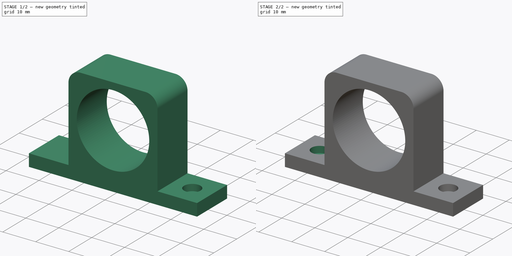
[diagram: build sequence overview — one tinted view per stage of 2, left to right]
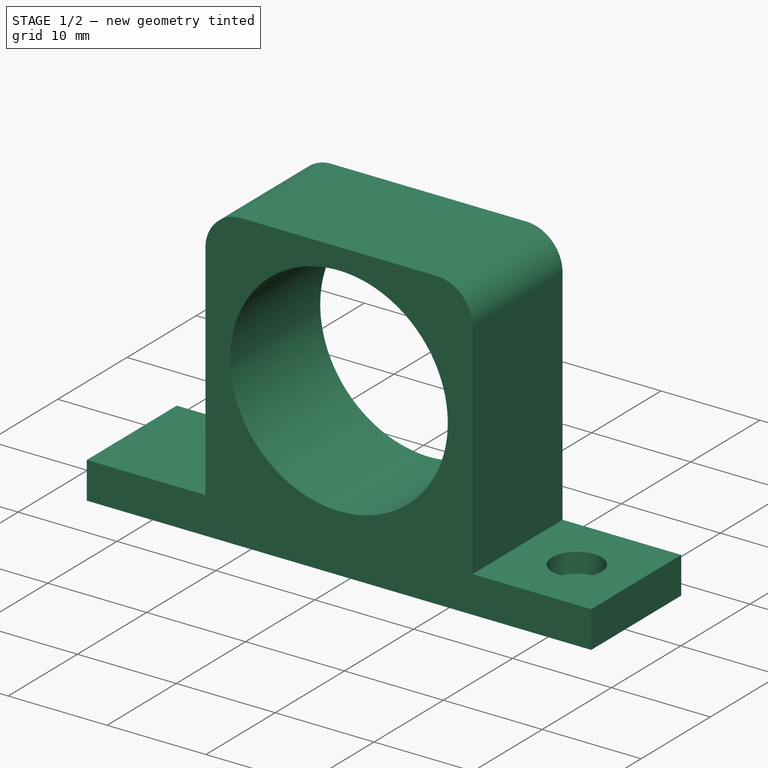
[diagram: stage 1 of 2 — iso view after this stage's code; geometry added in this stage tinted green]
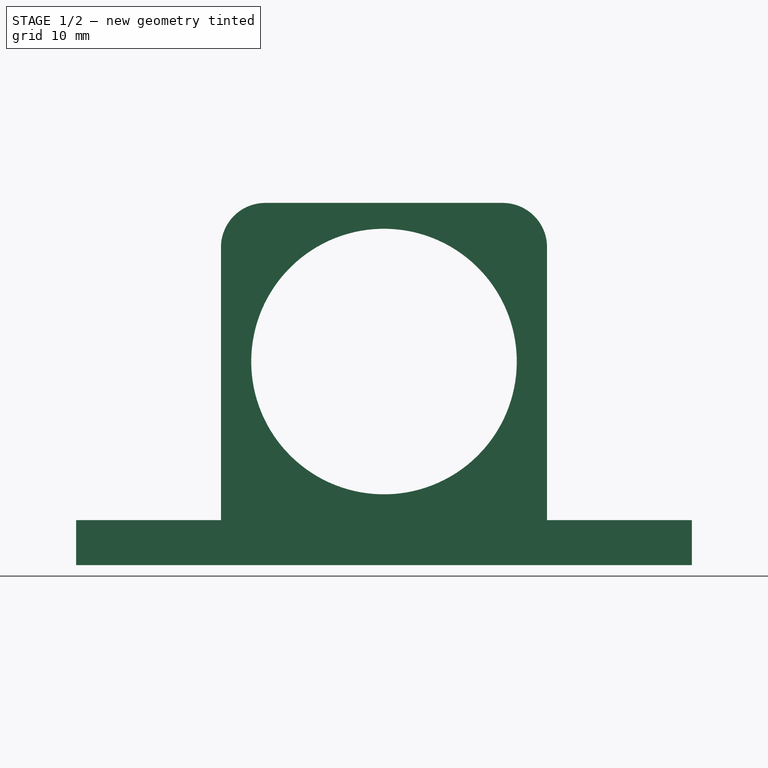
[diagram: stage 1 of 2 — front view after this stage's code; geometry added in this stage tinted green]
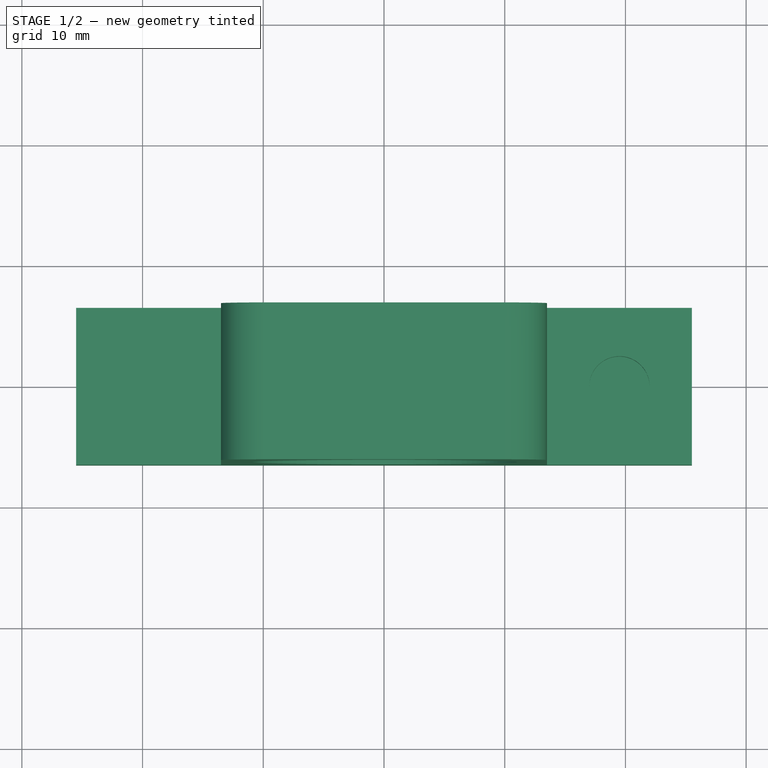
[diagram: stage 1 of 2 — top view after this stage's code; geometry added in this stage tinted green]
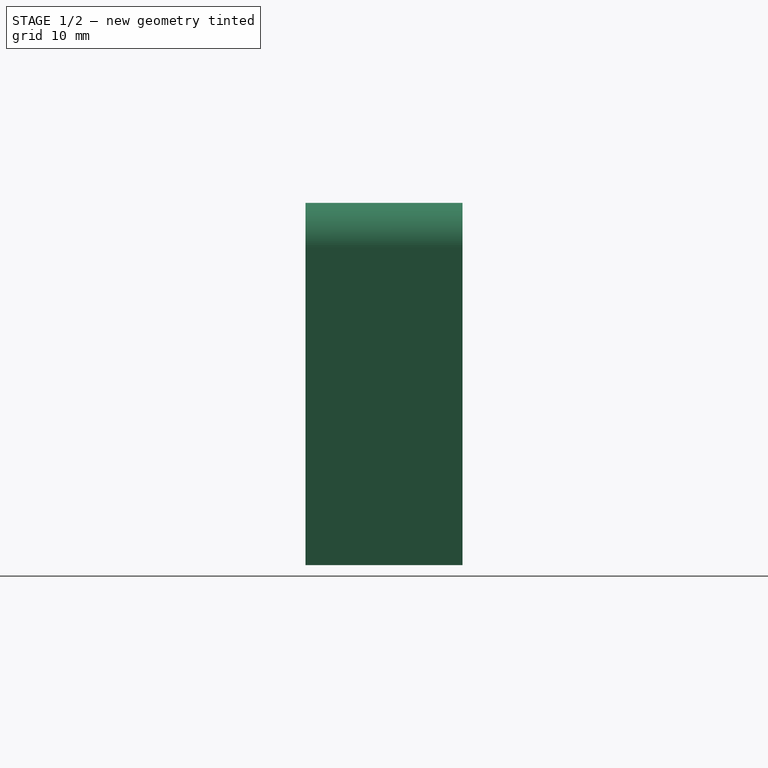
[diagram: stage 1 of 2 — right view after this stage's code; geometry added in this stage tinted green]
FCSTD DOCUMENT  (FreeCAD 1.0R39109 (Git))
Label: thesis_bracket
License: All rights reserved
LicenseURL: https://en.wikipedia.org/wiki/All_rights_reserved
objects: Sketcher::SketchObject×3, PartDesign::Pocket×2, PartDesign::Pad×1, PartDesign::Mirrored×1, PartDesign::Body×1
note: 18 computed .brp shape members not serialized (recipe doc carries the construction recipe); baked Part::Feature solids carry a one-line shape summary decoded from their .brp

FEATURE [Sketcher::SketchObject] Sketch
  ArcFitTolerance = 1e-06
  AttachmentSupport = -> [XZ_Plane]
  FullyConstrained = true
  MakeInternals = false
  MapMode = 5
  Placement = pos=(0,0,0) rot=(1,0,0;1.5708rad)
  sketch-geometry (19):
    g0: Circle CenterX=0 CenterY=16.86 CenterZ=0 NormalX=0 NormalY=0 NormalZ=1 AngleXU=0 Radius=4
    g1: Circle CenterX=0 CenterY=16.86 CenterZ=0 NormalX=0 NormalY=0 NormalZ=1 AngleXU=0 Radius=11
    g2: LineSegment [constr] StartX=-25.505 StartY=30 StartZ=0 EndX=-25.505 EndY=0 EndZ=0
    g3: LineSegment StartX=-25.505 StartY=0 StartZ=0 EndX=25.505 EndY=0 EndZ=0
    g4: LineSegment [constr] StartX=25.505 StartY=0 StartZ=0 EndX=25.505 EndY=30 EndZ=0
    g5: LineSegment [constr] StartX=25.505 StartY=30 StartZ=0 EndX=-25.505 EndY=30 EndZ=0
    g6: LineSegment StartX=-25.505 StartY=3.72 StartZ=0 EndX=-13.505 EndY=3.72 EndZ=0
    g7: LineSegment StartX=-13.505 StartY=3.72 StartZ=0 EndX=-13.505 EndY=26.33 EndZ=0
    g8: LineSegment StartX=-9.835 StartY=30 StartZ=0 EndX=9.835 EndY=30 EndZ=0
    g9: LineSegment StartX=13.505 StartY=26.33 StartZ=0 EndX=13.505 EndY=3.72 EndZ=0
    g10: LineSegment StartX=13.505 StartY=3.72 StartZ=0 EndX=25.505 EndY=3.72 EndZ=0
    g11: GeomPoint X=0 Y=30 Z=0
    g12: ArcOfCircle CenterX=-9.835 CenterY=26.33 CenterZ=0 NormalX=0 NormalY=0 NormalZ=1 AngleXU=0 Radius=3.67 StartAngle=1.5708 EndAngle=3.14159
    g13: GeomPoint [constr] X=-13.505 Y=30 Z=0
    g14: ArcOfCircle CenterX=9.835 CenterY=26.33 CenterZ=0 NormalX=0 NormalY=0 NormalZ=1 AngleXU=0 Radius=3.67 StartAngle=-9e-16 EndAngle=1.5708
    g15: GeomPoint [constr] X=13.505 Y=30 Z=0
    g16: LineSegment StartX=-25.505 StartY=3.72 StartZ=0 EndX=-25.505 EndY=0 EndZ=0
    g17: LineSegment StartX=25.505 StartY=3.72 StartZ=0 EndX=25.505 EndY=0 EndZ=0
    g18: GeomPoint X=0 Y=0 Z=0
  constraints (45):
    c: Diameter(g0) = 8
    c: PointOnObject(g0,g-2)
    c: Diameter(g1) = 22
    c: Coincident(g1,g0)
    c: Coincident(g2,g3)
    c: Coincident(g3,g4)
    c: Coincident(g4,g5)
    c: Coincident(g5,g2)
    c: Vertical(g2)
    c: Vertical(g4)
    c: Horizontal(g3)
    c: Horizontal(g5)
    c: DistanceY(g2,g2) = 30
    c: PointOnObject(g6,g2)
    c: Horizontal(g6)
    c: Coincident(g6,g7)
    c: PointOnObject(g13,g5)
    c: Vertical(g7)
    c: PointOnObject(g15,g5)
    c: Vertical(g9)
    c: Coincident(g9,g10)
    c: PointOnObject(g10,g4)
    c: Horizontal(g10)
    c: Equal(g10,g6)
    c: Symmetric(g13,g15,g11)
    c: PointOnObject(g11,g-2)
    c: PointOnObject(g13,g8)
    c: Tangent(g7,g12) = 1.5708
    c: Tangent(g8,g12) = 1.5708
    c: PointOnObject(g15,g8)
    c: Tangent(g8,g14) = 1.5708
    c: Tangent(g9,g14) = 1.5708
    c: Symmetric(g13,g9,g0)
    c: DistanceY(g9,g9) = 22.61
    c: Equal(g9,g7)
    c: Coincident(g16,g6)
    c: Coincident(g16,g2)
    c: Coincident(g17,g10)
    c: Coincident(g17,g3)
    c: Equal(g16,g17)
    c: DistanceX(g8,g8) = 19.67
    c: DistanceX(g13,g15) = 27.01
    c: Symmetric(g3,g3,g18)
    c: Coincident(g18,g-1)
    c: DistanceX(g6,g6) = 12
FEATURE [PartDesign::Pad] Pad
  Direction = (0,-1,2e-16)
  Length = 13
  Length2 = 10
  Midplane = true
  Placement = pos=(0,0,0) rot=(1,0,0;1.5708rad)
  Profile = -> Sketch
  ReferenceAxis = -> Sketch [N_Axis]
  Refine = true
  Suppressed = false
  Type = 0
FEATURE [Sketcher::SketchObject] Sketch001
  ArcFitTolerance = 1e-06
  AttachmentSupport = -> [Pad]
  ExternalGeometry = -> [Pad]
  FullyConstrained = true
  MakeInternals = false
  MapMode = 5
  Placement = pos=(0,8e-16,3.72) rot=(0,0,1;3.14159rad)
  sketch-geometry (2):
    g0: GeomPoint X=-19.505 Y=0 Z=0
    g1: Circle CenterX=-19.505 CenterY=0 CenterZ=0 NormalX=0 NormalY=0 NormalZ=1 AngleXU=0 Radius=2.5
  constraints (3):
    c: Symmetric(g-4,g-6,g0)
    c: Diameter(g1) = 5
    c: Coincident(g1,g0)
FEATURE [PartDesign::Pocket] Pocket
  BaseFeature = -> Pad
  Direction = (0,0,-1)
  Length = 2
  Length2 = 5
  Placement = pos=(0,0,0) rot=(1,0,0;1.5708rad)
  Profile = -> Sketch001
  ReferenceAxis = -> Sketch001 [N_Axis]
  Refine = true
  Suppressed = false
  Type = 0
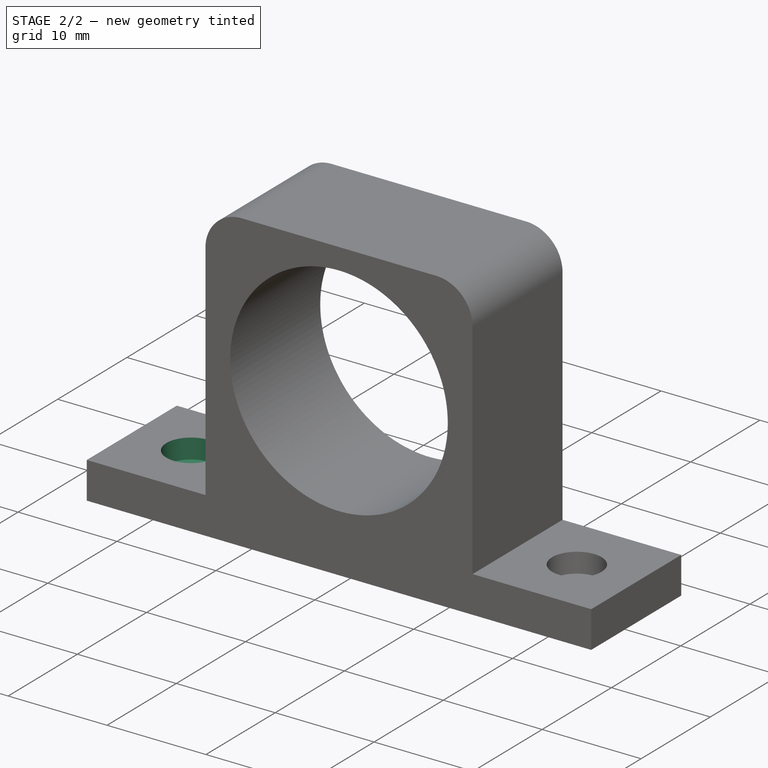
[diagram: stage 2 of 2 — iso view after this stage's code; geometry added in this stage tinted green]
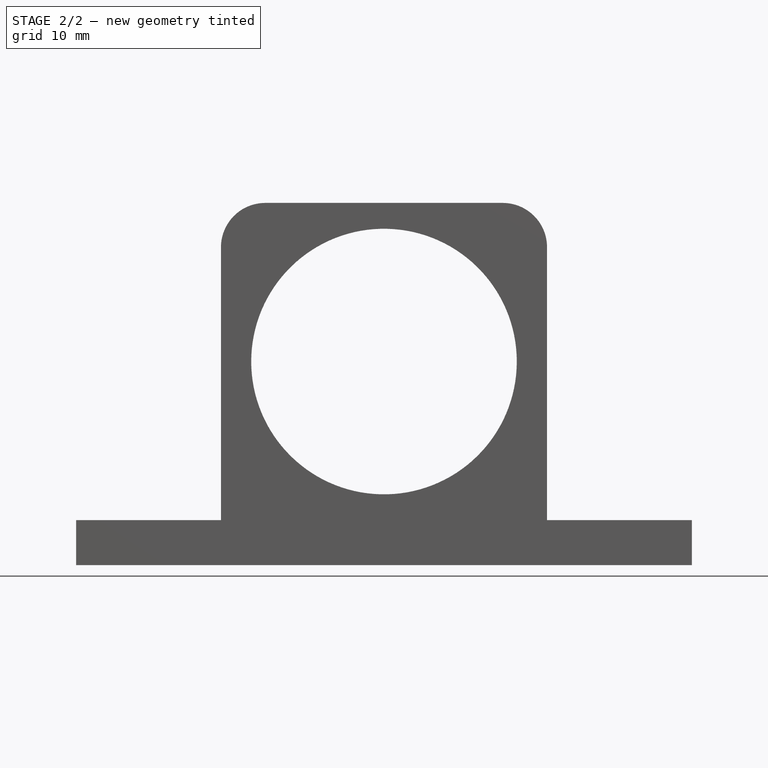
[diagram: stage 2 of 2 — front view after this stage's code; geometry added in this stage tinted green]
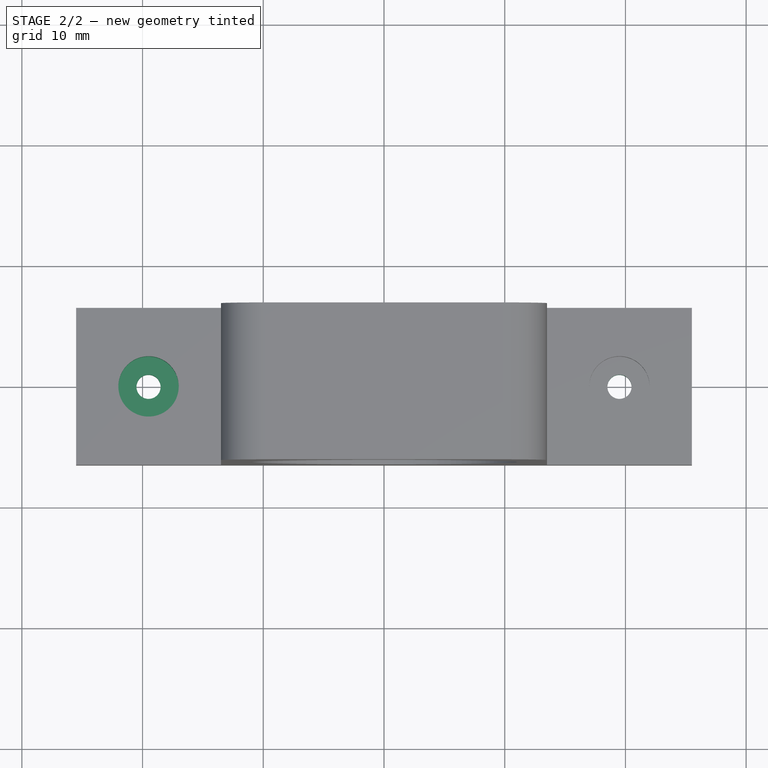
[diagram: stage 2 of 2 — top view after this stage's code; geometry added in this stage tinted green]
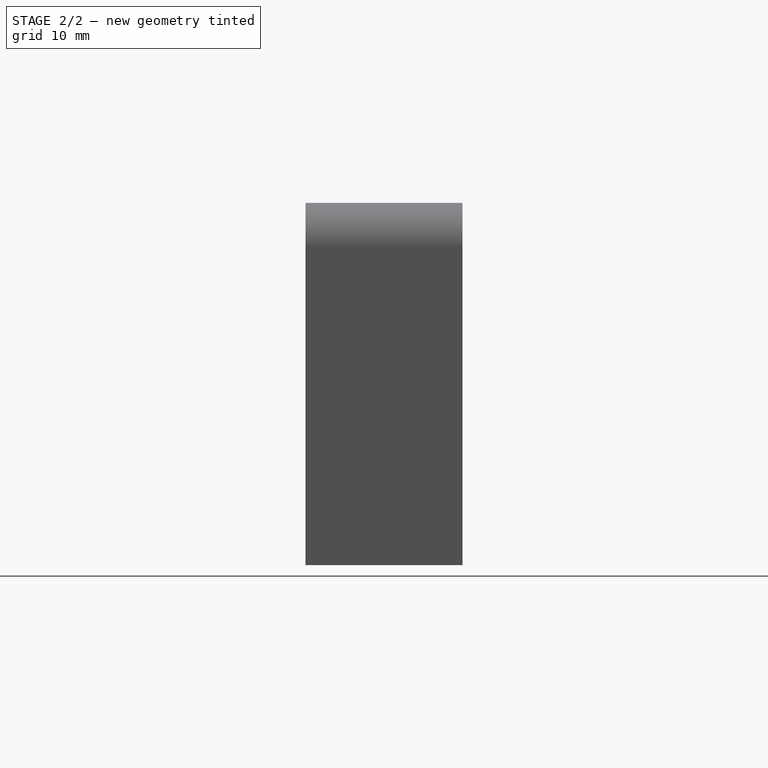
[diagram: stage 2 of 2 — right view after this stage's code; geometry added in this stage tinted green]
FEATURE [Sketcher::SketchObject] Sketch002
  ArcFitTolerance = 1e-06
  AttachmentSupport = -> [Pocket]
  ExternalGeometry = -> [Pocket]
  FullyConstrained = true
  MakeInternals = false
  MapMode = 5
  Placement = pos=(0,0,1.72) rot=(0,0,1;3.14159rad)
  sketch-geometry (1):
    g0: Circle CenterX=-19.505 CenterY=-2.1e-15 CenterZ=0 NormalX=0 NormalY=0 NormalZ=1 AngleXU=0 Radius=1
  constraints (2):
    c: Symmetric(g-3,g-4,g0)
    c: Diameter(g0) = 2
FEATURE [PartDesign::Pocket] Pocket001
  BaseFeature = -> Pocket
  Direction = (0,0,-1)
  Length = 5
  Length2 = 5
  Placement = pos=(0,0,0) rot=(1,0,0;1.5708rad)
  Profile = -> Sketch002
  ReferenceAxis = -> Sketch002 [N_Axis]
  Refine = true
  Suppressed = false
  Type = 0
FEATURE [PartDesign::Mirrored] Mirrored
  BaseFeature = -> Pocket001
  MirrorPlane = -> Sketch002 [V_Axis]
  Originals = -> [Pocket001,Pocket]
  Placement = pos=(0,0,0) rot=(1,0,0;1.5708rad)
  Refine = true
  Suppressed = false
  TransformMode = 0
FEATURE [PartDesign::Body] Body
  AllowCompound = false
  Group = -> [Sketch,Pad,Sketch001,Pocket,Sketch002,Pocket001,Mirrored]
  Origin = -> Origin
  Tip = -> Mirrored
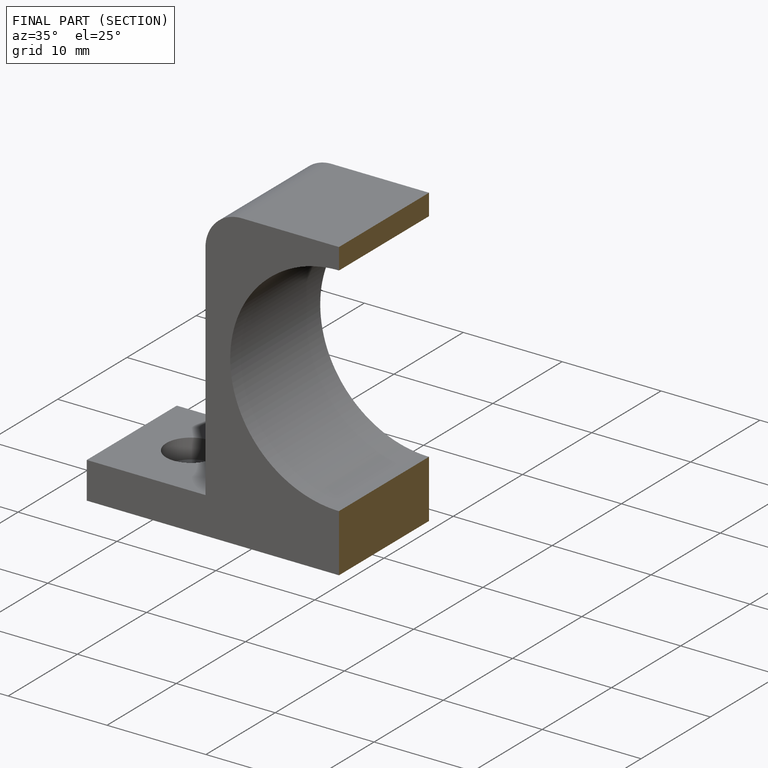
[diagram: finished part — half-section view (interior)]
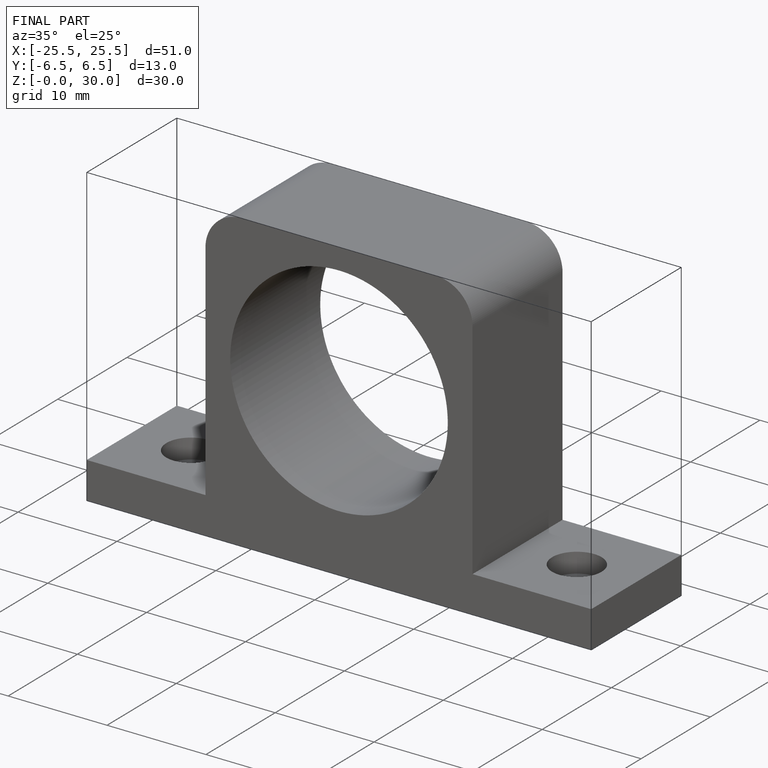
[diagram: finished part — iso view with bounding-box wireframe]
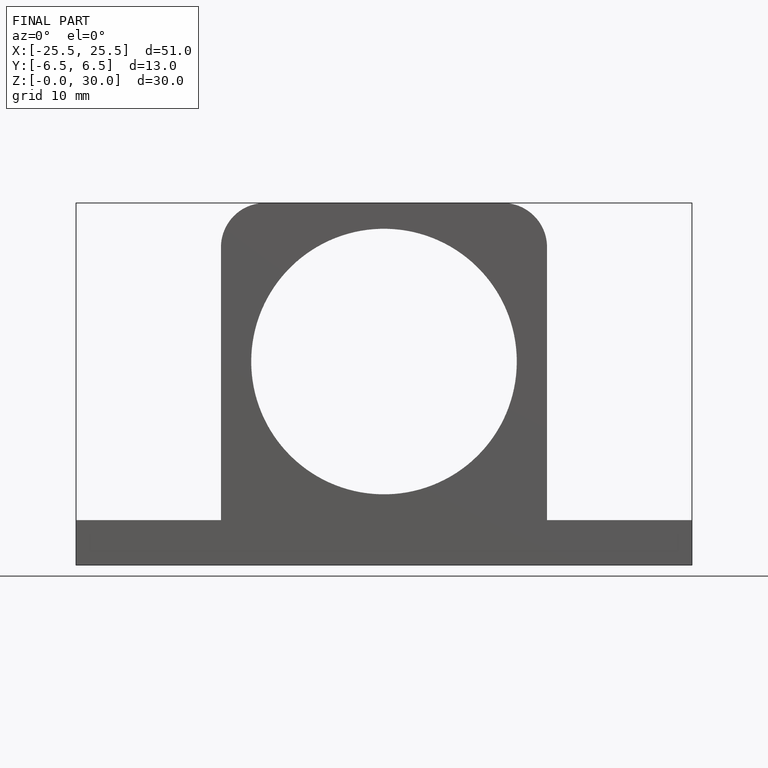
[diagram: finished part — front view with bounding-box wireframe]
